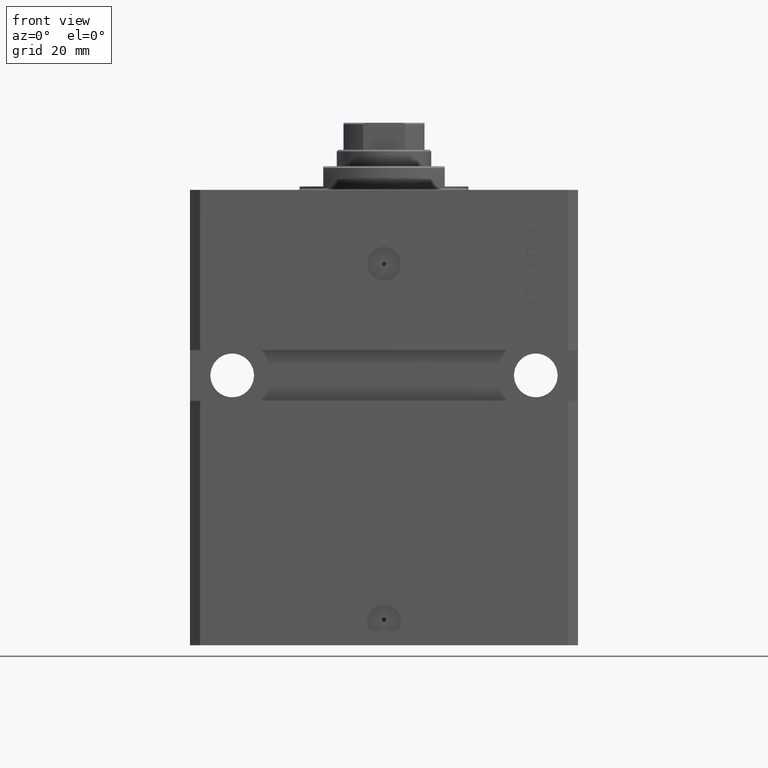
[diagram: clean part render]
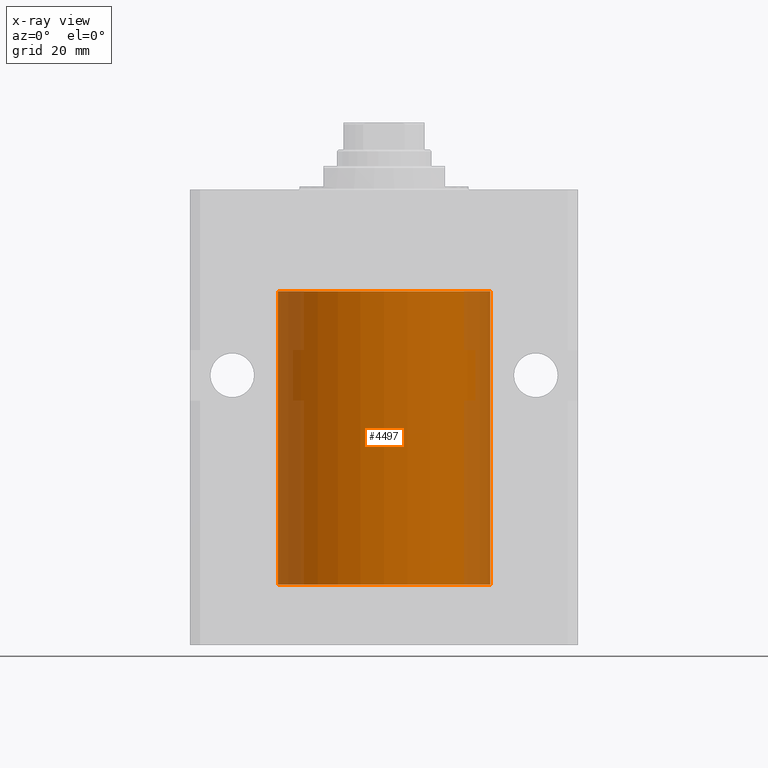
[diagram: x-ray — body ghosted, one internal face saturated and labeled with its STEP entity id]
A machine part, front view, then the same camera in x-ray: the body is ghosted and one INTERNAL B-rep face — a face not visible from any outside direction — is saturated and labeled: STEP entity #4497.
In plain terms, the highlighted cylindrical surface (partial cylindrical patch) has radius 31.5 mm, axis along (0, 0, 1).
Its self-contained STEP definition (entity closure, byte-faithful):
#253 = EDGE_CURVE ( 'NONE', #47255, #31339, #23359, .T. ) ;
#505 = CYLINDRICAL_SURFACE ( 'NONE', #7244, 31.50000000000000000 ) ;
#590 = LINE ( 'NONE', #45388, #15688 ) ;
#867 = CARTESIAN_POINT ( 'NONE',  ( -31.50000000000000000, 3.857637417314162689E-15, -117.0999999999999943 ) ) ;
#2690 = ORIENTED_EDGE ( 'NONE', *, *, #20163, .T. ) ;
#2859 = CIRCLE ( 'NONE', #16246, 31.50000000000000000 ) ;
#3107 = CARTESIAN_POINT ( 'NONE',  ( 0.000000000000000000, 0.000000000000000000, -30.10000000000000142 ) ) ;
#4027 = CARTESIAN_POINT ( 'NONE',  ( 31.49379899281760942, -0.6250000000000288658, -114.1647754387995661 ) ) ;
#4497 = ADVANCED_FACE ( 'NONE', ( #33973 ), #505, .F. ) ;
#6472 = VERTEX_POINT ( 'NONE', #32136 ) ;
#7007 = VERTEX_POINT ( 'NONE', #43080 ) ;
#7244 = AXIS2_PLACEMENT_3D ( 'NONE', #45299, #22630, #26079 ) ;
#7658 = CARTESIAN_POINT ( 'NONE',  ( 31.49528358446202603, -0.5571510427948113131, -113.6732007340060449 ) ) ;
#8755 = EDGE_CURVE ( 'NONE', #14663, #29861, #590, .T. ) ;
#8814 = DIRECTION ( 'NONE',  ( -0.000000000000000000, -0.000000000000000000, 1.000000000000000000 ) ) ;
#11441 = CARTESIAN_POINT ( 'NONE',  ( 31.50000000000000000, -0.1650602271992127057, -114.6250000000000142 ) ) ;
#11607 = CARTESIAN_POINT ( 'NONE',  ( 31.50000000000000000, -0.1632157801386601437, -113.3749999999998579 ) ) ;
#12972 = ORIENTED_EDGE ( 'NONE', *, *, #31837, .T. ) ;
#13206 = DIRECTION ( 'NONE',  ( 1.000000000000000000, 0.000000000000000000, 0.000000000000000000 ) ) ;
#14663 = VERTEX_POINT ( 'NONE', #38368 ) ;
#14858 = CARTESIAN_POINT ( 'NONE',  ( 31.49851597466318864, -0.3267811800504749065, -114.5571701479423297 ) ) ;
#15569 = ORIENTED_EDGE ( 'NONE', *, *, #35285, .F. ) ;
#15583 = DIRECTION ( 'NONE',  ( -0.000000000000000000, -0.000000000000000000, 1.000000000000000000 ) ) ;
#15688 = VECTOR ( 'NONE', #15583, 1000.000000000000000 ) ;
#16246 = AXIS2_PLACEMENT_3D ( 'NONE', #3107, #18122, #13206 ) ;
#16485 = CARTESIAN_POINT ( 'NONE',  ( 31.50000000000000000, -2.492939093807799249E-15, -114.6250000000000000 ) ) ;
#16913 = CARTESIAN_POINT ( 'NONE',  ( 31.50000000000000000, 0.000000000000000000, -117.0999999999999943 ) ) ;
#18122 = DIRECTION ( 'NONE',  ( 0.000000000000000000, 0.000000000000000000, 1.000000000000000000 ) ) ;
#18798 = CARTESIAN_POINT ( 'NONE',  ( 31.50000000000000000, -2.492939093807799249E-15, -114.6250000000000000 ) ) ;
#19291 = CARTESIAN_POINT ( 'NONE',  ( 31.49379899281761652, -0.6250000000000288658, -114.0000000000000000 ) ) ;
#19719 = CARTESIAN_POINT ( 'NONE',  ( 31.49379899281761652, -0.6250000000000288658, -114.0000000000000000 ) ) ;
#20163 = EDGE_CURVE ( 'NONE', #6472, #37699, #34834, .T. ) ;
#22630 = DIRECTION ( 'NONE',  ( -0.000000000000000000, -0.000000000000000000, 1.000000000000000000 ) ) ;
#23359 = B_SPLINE_CURVE_WITH_KNOTS ( 'NONE', 3,
 ( #19291, #4027, #45393, #14858, #11441, #18798 ),
 .UNSPECIFIED., .F., .F.,
 ( 4, 2, 4 ),
 ( 0.002931422870062072236, 0.003419574257808113277, 0.003907725645554154317 ),
 .UNSPECIFIED. ) ;
#25374 = ORIENTED_EDGE ( 'NONE', *, *, #25996, .F. ) ;
#25865 = CARTESIAN_POINT ( 'NONE',  ( 31.49851930977805381, -0.3264760966898029859, -113.4426595268314770 ) ) ;
#25996 = EDGE_CURVE ( 'NONE', #7007, #31339, #27996, .T. ) ;
#26079 = DIRECTION ( 'NONE',  ( 1.000000000000000000, 0.000000000000000000, 0.000000000000000000 ) ) ;
#26110 = CARTESIAN_POINT ( 'NONE',  ( 31.50000000000006395, 3.442404755096224483E-13, -113.3749999999967741 ) ) ;
#27389 = ORIENTED_EDGE ( 'NONE', *, *, #253, .T. ) ;
#27837 = VECTOR ( 'NONE', #8814, 1000.000000000000000 ) ;
#27996 = LINE ( 'NONE', #16913, #27837 ) ;
#28294 = CARTESIAN_POINT ( 'NONE',  ( 0.000000000000000000, 0.000000000000000000, -117.0999999999999943 ) ) ;
#29861 = VERTEX_POINT ( 'NONE', #46386 ) ;
#29942 = DIRECTION ( 'NONE',  ( 0.000000000000000000, 0.000000000000000000, 1.000000000000000000 ) ) ;
#30172 = ORIENTED_EDGE ( 'NONE', *, *, #41474, .T. ) ;
#31126 = DIRECTION ( 'NONE',  ( -0.000000000000000000, -0.000000000000000000, 1.000000000000000000 ) ) ;
#31279 = ORIENTED_EDGE ( 'NONE', *, *, #8755, .F. ) ;
#31339 = VERTEX_POINT ( 'NONE', #16485 ) ;
#31663 = VECTOR ( 'NONE', #31126, 1000.000000000000000 ) ;
#31837 = EDGE_CURVE ( 'NONE', #37699, #29861, #2859, .T. ) ;
#32136 = CARTESIAN_POINT ( 'NONE',  ( -31.50000000000000000, 3.857637417314162689E-15, -117.0999999999999943 ) ) ;
#33973 = FACE_OUTER_BOUND ( 'NONE', #39445, .T. ) ;
#34834 = LINE ( 'NONE', #867, #31663 ) ;
#35285 = EDGE_CURVE ( 'NONE', #6472, #7007, #40072, .T. ) ;
#37699 = VERTEX_POINT ( 'NONE', #44452 ) ;
#38368 = CARTESIAN_POINT ( 'NONE',  ( 31.50000000000006395, 3.442404755096224483E-13, -113.3749999999967741 ) ) ;
#38392 = B_SPLINE_CURVE_WITH_KNOTS ( 'NONE', 3,
 ( #26110, #11607, #25865, #7658, #41166, #41628 ),
 .UNSPECIFIED., .F., .F.,
 ( 4, 2, 4 ),
 ( 0.001954083649707730446, 0.002442753259884901558, 0.002931422870062072236 ),
 .UNSPECIFIED. ) ;
#39445 = EDGE_LOOP ( 'NONE', ( #15569, #2690, #12972, #31279, #30172, #27389, #25374 ) ) ;
#39659 = DIRECTION ( 'NONE',  ( 1.000000000000000000, 0.000000000000000000, 0.000000000000000000 ) ) ;
#40072 = CIRCLE ( 'NONE', #46353, 31.50000000000000000 ) ;
#41166 = CARTESIAN_POINT ( 'NONE',  ( 31.49379899281761652, -0.6250000000000287548, -113.8350496352847756 ) ) ;
#41474 = EDGE_CURVE ( 'NONE', #14663, #47255, #38392, .T. ) ;
#41628 = CARTESIAN_POINT ( 'NONE',  ( 31.49379899281761652, -0.6250000000000288658, -114.0000000000000000 ) ) ;
#43080 = CARTESIAN_POINT ( 'NONE',  ( 31.50000000000000000, 0.000000000000000000, -117.0999999999999943 ) ) ;
#44452 = CARTESIAN_POINT ( 'NONE',  ( -31.50000000000000000, 3.857637417314162689E-15, -30.10000000000000142 ) ) ;
#45299 = CARTESIAN_POINT ( 'NONE',  ( 0.000000000000000000, 0.000000000000000000, -117.0999999999999943 ) ) ;
#45388 = CARTESIAN_POINT ( 'NONE',  ( 31.50000000000000000, 0.000000000000000000, -117.0999999999999943 ) ) ;
#45393 = CARTESIAN_POINT ( 'NONE',  ( 31.49527967292564057, -0.5573624224366642288, -114.3264531259596168 ) ) ;
#46353 = AXIS2_PLACEMENT_3D ( 'NONE', #28294, #29942, #39659 ) ;
#46386 = CARTESIAN_POINT ( 'NONE',  ( 31.50000000000000000, 0.000000000000000000, -30.10000000000000142 ) ) ;
#47255 = VERTEX_POINT ( 'NONE', #19719 ) ;